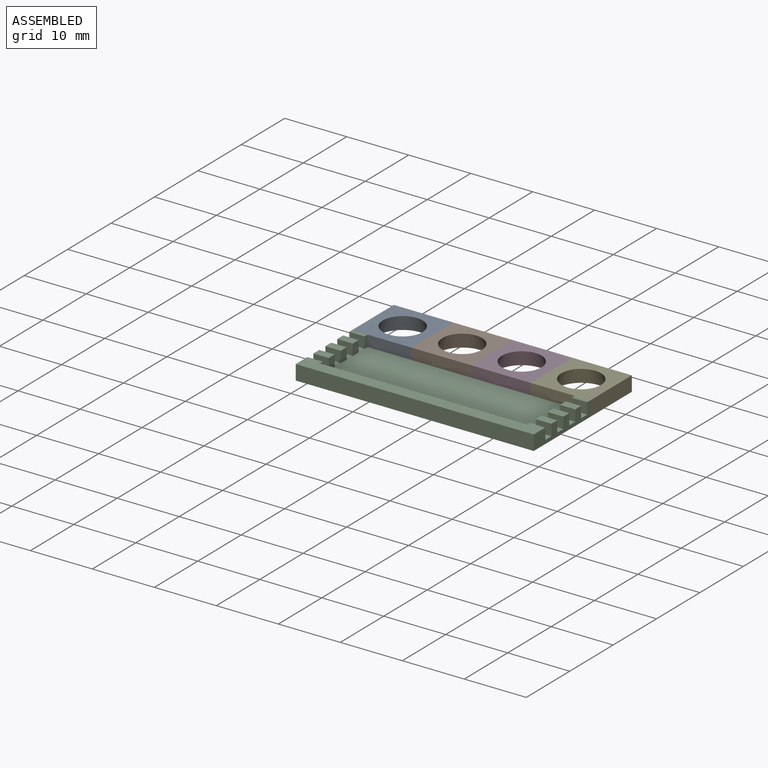
[diagram: assembled view]
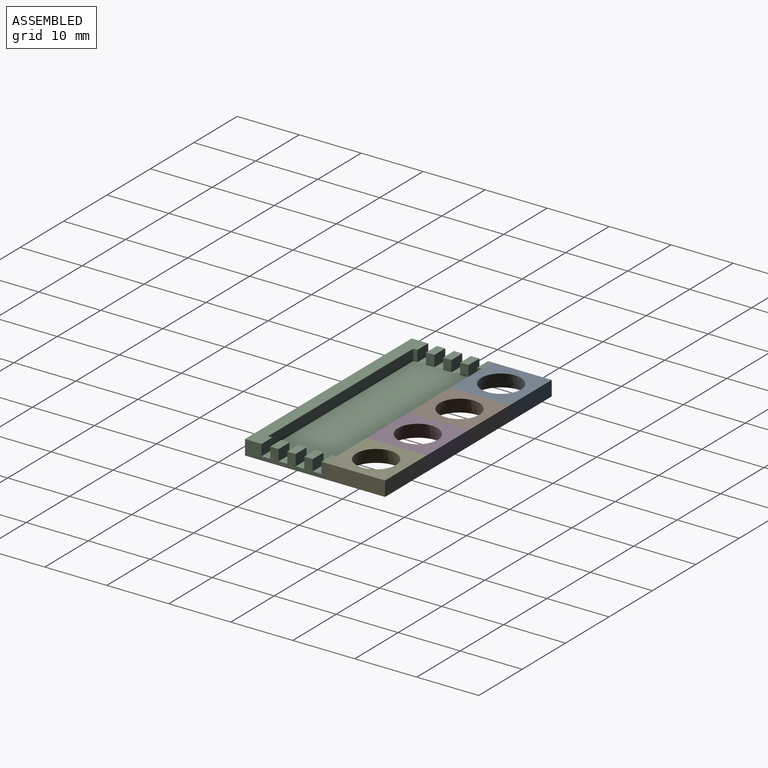
[diagram: assembled view, second angle]
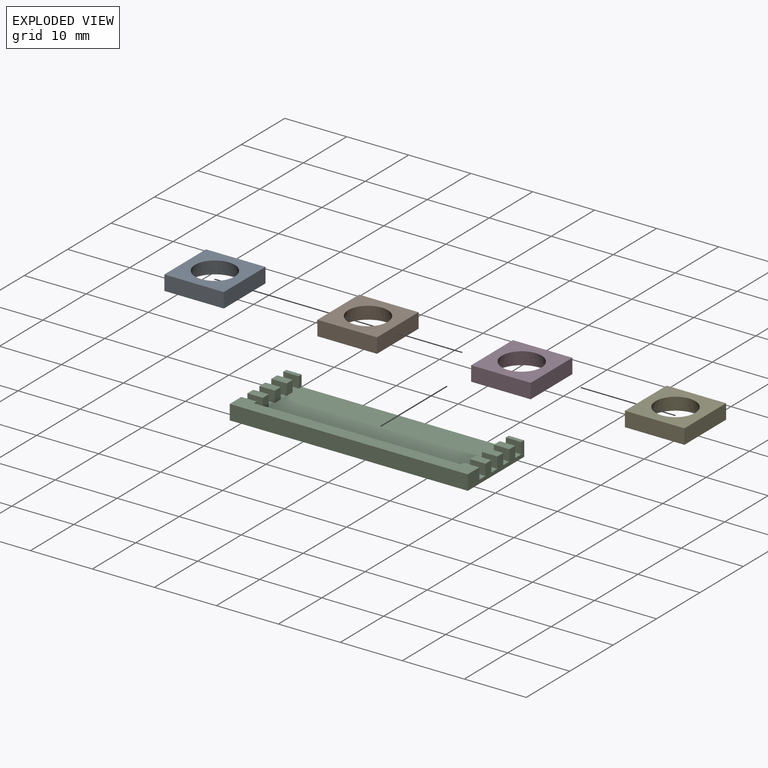
[diagram: exploded view]
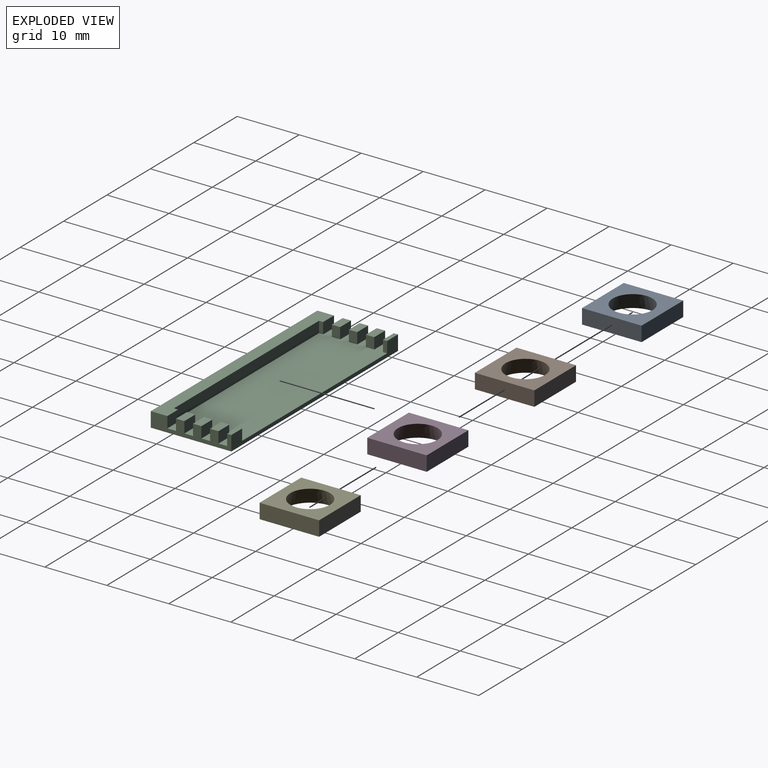
[diagram: exploded view, second angle]
ASSEMBLY  parts=5 mates=4
PART A: 7 faces, bbox 9.6x9.6x2.4 mm
  f0: plane 9.6x9.6mm, normal (0,0,1), area 41.9mm2, adj f2,f3,f4,f5,f6
  f1: plane 9.6x9.6mm, normal (0,0,-1), area 60mm2, adj f2,f3,f4,f5,f6
  f2: cone r=3.2mm half-angle=18.4deg, axis (0,0,1), area 57.2mm2, adj f0,f1
  f3: plane 9.6x2.4mm, normal (0,1,0), area 23mm2, adj f0,f1,f4,f5
  f4: plane 9.6x2.4mm, normal (-1,0,0), area 23mm2, adj f0,f1,f3,f6
  f5: plane 9.6x2.4mm, normal (1,0,0), area 23mm2, adj f0,f1,f3,f6
  f6: plane 9.6x2.4mm, normal (0,-1,0), area 23mm2, adj f0,f1,f4,f5
PART B: same geometry as A
PART C: 42 faces, bbox 38.4x13x2.4 mm
  f0: plane 1.8x0.68mm, normal (-1,0,0), area 1.2mm2, adj f17,f18,f19,f33
  f1: plane 1.8x1.35mm, normal (-1,0,0), area 2.4mm2, adj f10,f19,f31,f32
  f2: plane 1.8x1.35mm, normal (-1,0,0), area 2.4mm2, adj f12,f19,f29,f30
  f3: plane 1.8x1.35mm, normal (-1,0,0), area 2.4mm2, adj f14,f19,f27,f28
  f4: plane 1.8x0.68mm, normal (1,0,0), area 1.2mm2, adj f18,f19,f25,f41
  f5: plane 1.8x1.35mm, normal (1,0,0), area 2.4mm2, adj f11,f19,f38,f40
  f6: plane 1.8x1.35mm, normal (1,0,0), area 2.4mm2, adj f13,f19,f36,f39
  f7: plane 1.8x1.35mm, normal (1,0,0), area 2.4mm2, adj f15,f19,f35,f37
  f8: plane 13x2.4mm, normal (-1,0,0), area 21.1mm2, adj f11,f13,f15,f16,f18,f19,f20,f24
  f9: plane 13x2.4mm, normal (1,0,0), area 21.1mm2, adj f10,f12,f14,f16,f17,f18,f19,f20
  f10: plane 2.5x1.35mm, normal (0,0,1), area 3.4mm2, adj f1,f9,f31,f32
  f11: plane 2.5x1.35mm, normal (0,0,1), area 3.4mm2, adj f5,f8,f38,f40
  f12: plane 2.5x1.35mm, normal (0,0,1), area 3.4mm2, adj f2,f9,f29,f30
  f13: plane 2.5x1.35mm, normal (0,0,1), area 3.4mm2, adj f6,f8,f36,f39
  f14: plane 2.5x1.35mm, normal (0,0,1), area 3.4mm2, adj f3,f9,f27,f28
  f15: plane 2.5x1.35mm, normal (0,0,1), area 3.4mm2, adj f7,f8,f35,f37
  f16: plane 38.4x2.68mm, normal (0,0,1), area 80.2mm2, adj f8,f9,f21,f22,f23,f24,f26,f34
  f17: plane 2.5x0.68mm, normal (0,0,1), area 1.7mm2, adj f0,f9,f18,f33
  f18: plane 38.4x2.4mm, normal (0,1,0), area 32mm2, adj f0,f4,f8,f9,f17,f19,f20,f25
  f19: plane 38.4x11mm, normal (0,0,1), area 395.4mm2, adj f0,f1,f2,f3,f4,f5,f6,f7
  f20: plane 38.4x13mm, normal (0,0,-1), area 499.2mm2, adj f8,f9,f18,f24
  f21: plane 1.8x0.68mm, normal (-1,0,0), area 1.2mm2, adj f16,f19,f23,f26
  f22: plane 1.8x0.68mm, normal (1,0,0), area 1.2mm2, adj f16,f19,f23,f34
  f23: plane 33.4x1.8mm, normal (0,1,0), area 60.1mm2, adj f16,f19,f21,f22
  f24: plane 38.4x2.4mm, normal (0,-1,0), area 92.2mm2, adj f8,f9,f16,f20
  f25: plane 2.5x0.68mm, normal (0,0,1), area 1.7mm2, adj f4,f8,f18,f41
  f26: plane 2.5x1.8mm, normal (0,1,0), area 4.5mm2, adj f9,f16,f19,f21
  f27: plane 2.5x1.8mm, normal (0,-1,0), area 4.5mm2, adj f3,f9,f14,f19
  f28: plane 2.5x1.8mm, normal (0,1,0), area 4.5mm2, adj f3,f9,f14,f19
  f29: plane 2.5x1.8mm, normal (0,-1,0), area 4.5mm2, adj f2,f9,f12,f19
  f30: plane 2.5x1.8mm, normal (0,1,0), area 4.5mm2, adj f2,f9,f12,f19
  f31: plane 2.5x1.8mm, normal (0,-1,0), area 4.5mm2, adj f1,f9,f10,f19
  f32: plane 2.5x1.8mm, normal (0,1,0), area 4.5mm2, adj f1,f9,f10,f19
  f33: plane 2.5x1.8mm, normal (0,-1,0), area 4.5mm2, adj f0,f9,f17,f19
  f34: plane 2.5x1.8mm, normal (0,1,0), area 4.5mm2, adj f8,f16,f19,f22
  f35: plane 2.5x1.8mm, normal (0,-1,0), area 4.5mm2, adj f7,f8,f15,f19
  f36: plane 2.5x1.8mm, normal (0,-1,0), area 4.5mm2, adj f6,f8,f13,f19
  f37: plane 2.5x1.8mm, normal (0,1,0), area 4.5mm2, adj f7,f8,f15,f19
  f38: plane 2.5x1.8mm, normal (0,-1,0), area 4.5mm2, adj f5,f8,f11,f19
  f39: plane 2.5x1.8mm, normal (0,1,0), area 4.5mm2, adj f6,f8,f13,f19
  f40: plane 2.5x1.8mm, normal (0,1,0), area 4.5mm2, adj f5,f8,f11,f19
  f41: plane 2.5x1.8mm, normal (0,-1,0), area 4.5mm2, adj f4,f8,f19,f25
PART D: same geometry as A
PART E: same geometry as A
PLACE A rot(axis=(0.71,-0.71,0),180deg) t=(15.85,10.29,1.84)mm
PLACE B rot(axis=(0.71,-0.71,0),180deg) t=(25.45,10.29,1.84)mm
PLACE C t=(-1.75,-0.01,-0.56)mm
PLACE D rot(axis=(0.71,-0.71,0),180deg) t=(35.05,10.29,1.84)mm
PLACE E rot(axis=(-0.71,0.71,0),180deg) t=(44.65,10.29,1.84)mm
MATE fastened E.f5 <-> C.f18  axis (0,-1,0) through (17.45,5.49,0.64)mm
MATE fastened A.f6 <-> B.f3  axis (1,0,0) through (-11.35,10.29,0.64)mm
MATE fastened D.f6 <-> E.f3  axis (1,0,0) through (7.85,10.29,0.64)mm
MATE fastened B.f6 <-> D.f3  axis (1,0,0) through (-1.75,10.29,0.64)mm
